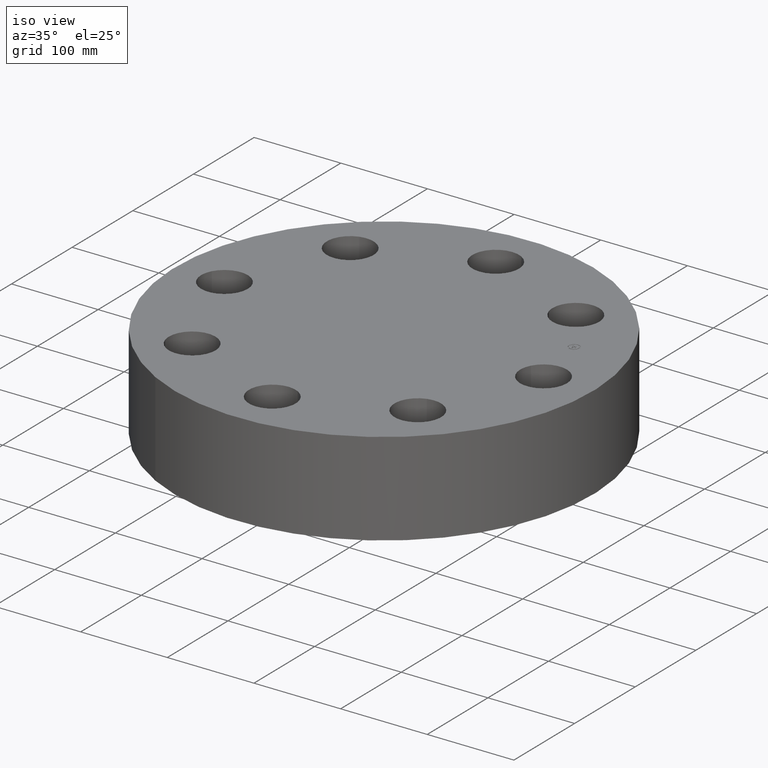
[diagram: clean part render]
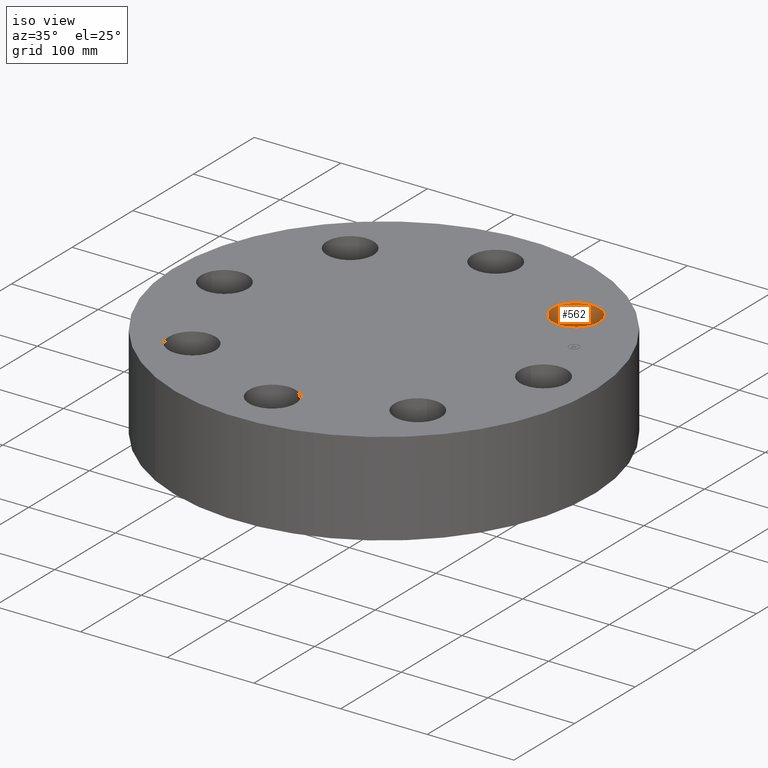
[diagram: same view with one face highlighted and labeled with its STEP entity id]
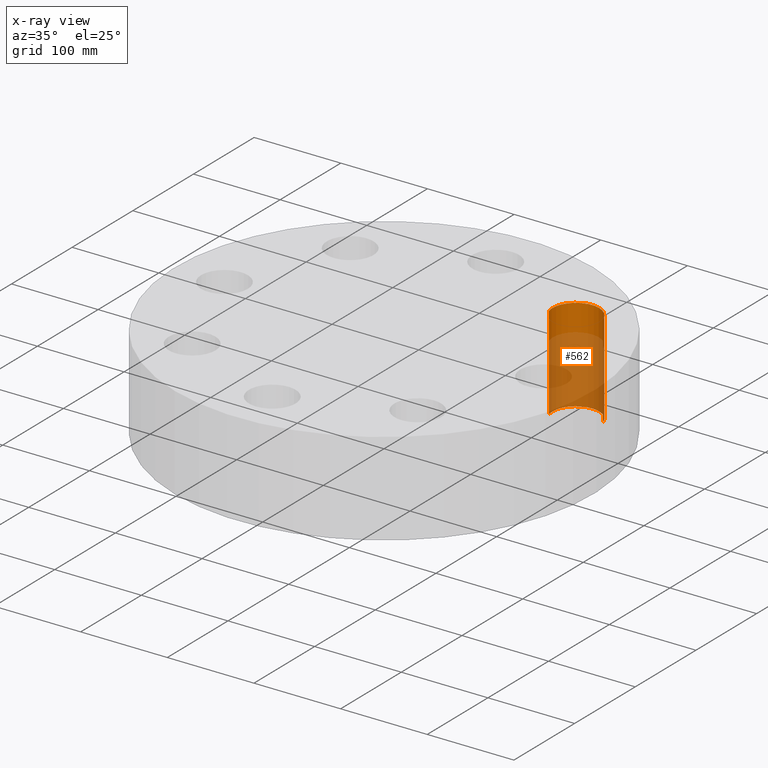
[diagram: x-ray of the same camera — body ghosted, the highlighted face saturated]
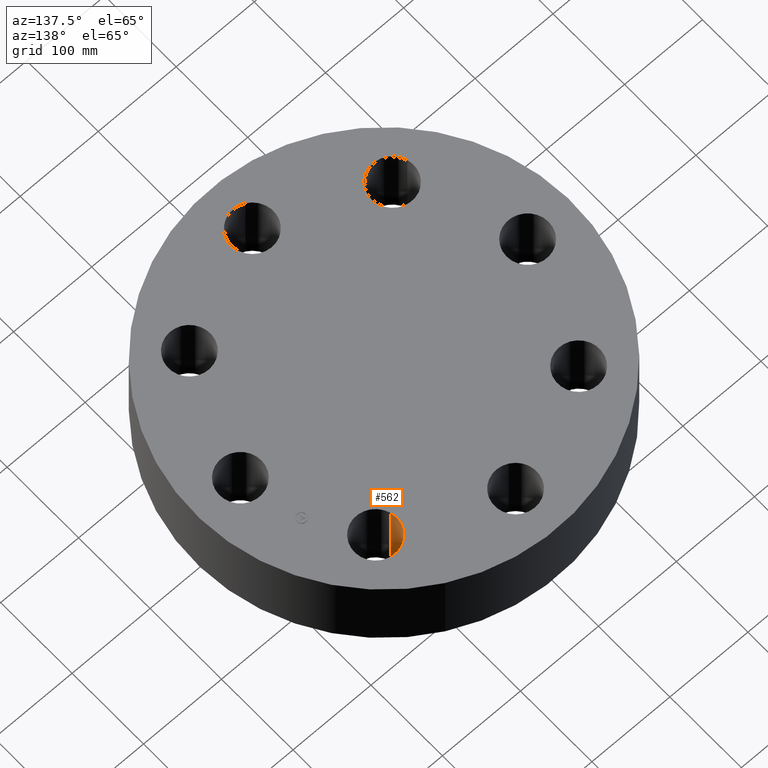
[diagram: same view with one face highlighted and labeled with its STEP entity id]
A machine part, iso view. The second image highlights one B-rep face of the part: STEP entity #562.
The next image is the same camera in x-ray: the body ghosted, the highlighted face saturated — about 71% of this face is hidden behind the body in this view.
A second angle (auxiliary view) of the same face is appended — the face is thin or edge-on in the first view.
In plain terms, the highlighted cylindrical surface (edge-blend (fillet) strip) has radius 26.924 mm, axis along (0, 0, -1).
Its self-contained STEP definition (entity closure, byte-faithful):
#343=AXIS2_PLACEMENT_3D('Circle Axis2P3D',#341,#342,$) ;
#535=AXIS2_PLACEMENT_3D('Cylinder Axis2P3D',#532,#533,#534) ;
#553=AXIS2_PLACEMENT_3D('Circle Axis2P3D',#551,#552,$) ;
#341=CARTESIAN_POINT('Axis2P3D Location',(5.12652416362,5.12652416362,0.)) ;
#345=CARTESIAN_POINT('Vertex',(4.10940155584,4.82809226061,0.)) ;
#347=CARTESIAN_POINT('Vertex',(6.14364677141,5.42495606664,0.)) ;
#532=CARTESIAN_POINT('Axis2P3D Location',(5.12652416362,5.12652416362,4.24606299214)) ;
#537=CARTESIAN_POINT('Line Origine',(4.10940155584,4.82809226061,2.12500000001)) ;
#541=CARTESIAN_POINT('Vertex',(4.10940155584,4.82809226061,4.25000000002)) ;
#544=CARTESIAN_POINT('Line Origine',(6.14364677141,5.42495606664,2.12500000001)) ;
#548=CARTESIAN_POINT('Vertex',(6.14364677141,5.42495606664,4.25000000002)) ;
#551=CARTESIAN_POINT('Axis2P3D Location',(5.12652416362,5.12652416362,4.25000000002)) ;
#342=DIRECTION('Axis2P3D Direction',(0.,0.,-0.0393700787402)) ;
#533=DIRECTION('Axis2P3D Direction',(0.,0.,-0.0393700787402)) ;
#534=DIRECTION('Axis2P3D XDirection',(0.0377775444876,0.0110842335096,0.)) ;
#538=DIRECTION('Vector Direction',(0.,0.,-0.0393700787402)) ;
#545=DIRECTION('Vector Direction',(0.,0.,-0.0393700787402)) ;
#552=DIRECTION('Axis2P3D Direction',(0.,0.,-0.0393700787402)) ;
#539=VECTOR('Line Direction',#538,0.0393700787402) ;
#546=VECTOR('Line Direction',#545,0.0393700787402) ;
#557=ORIENTED_EDGE('',*,*,#543,.F.) ;
#558=ORIENTED_EDGE('',*,*,#349,.T.) ;
#559=ORIENTED_EDGE('',*,*,#550,.T.) ;
#560=ORIENTED_EDGE('',*,*,#555,.F.) ;
#562=ADVANCED_FACE('PartBody',(#561),#536,.F.) ;
#344=CIRCLE('generated circle',#343,1.06) ;
#554=CIRCLE('generated circle',#553,1.06) ;
#536=CYLINDRICAL_SURFACE('generated cylinder',#535,1.06) ;
#349=EDGE_CURVE('',#346,#348,#344,.T.) ;
#543=EDGE_CURVE('',#346,#542,#540,.F.) ;
#550=EDGE_CURVE('',#348,#549,#547,.F.) ;
#555=EDGE_CURVE('',#542,#549,#554,.T.) ;
#556=EDGE_LOOP('',(#557,#558,#559,#560)) ;
#561=FACE_OUTER_BOUND('',#556,.T.) ;
#540=LINE('Line',#537,#539) ;
#547=LINE('Line',#544,#546) ;
#346=VERTEX_POINT('',#345) ;
#348=VERTEX_POINT('',#347) ;
#542=VERTEX_POINT('',#541) ;
#549=VERTEX_POINT('',#548) ;